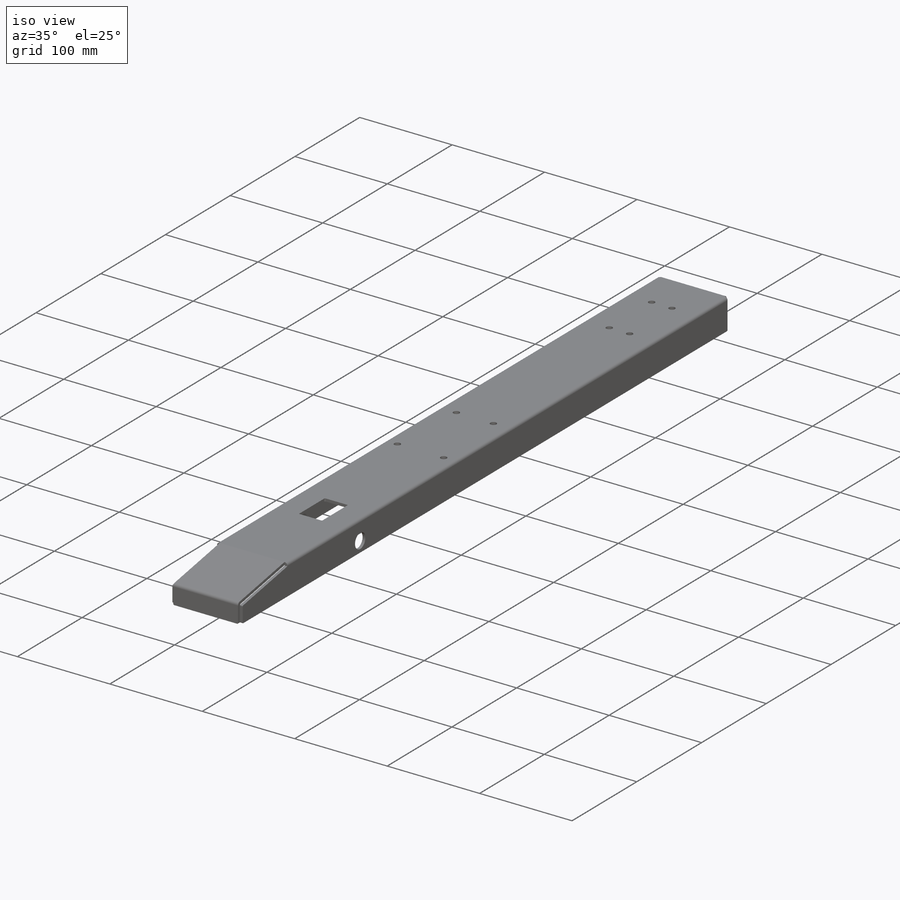
[diagram: iso view]
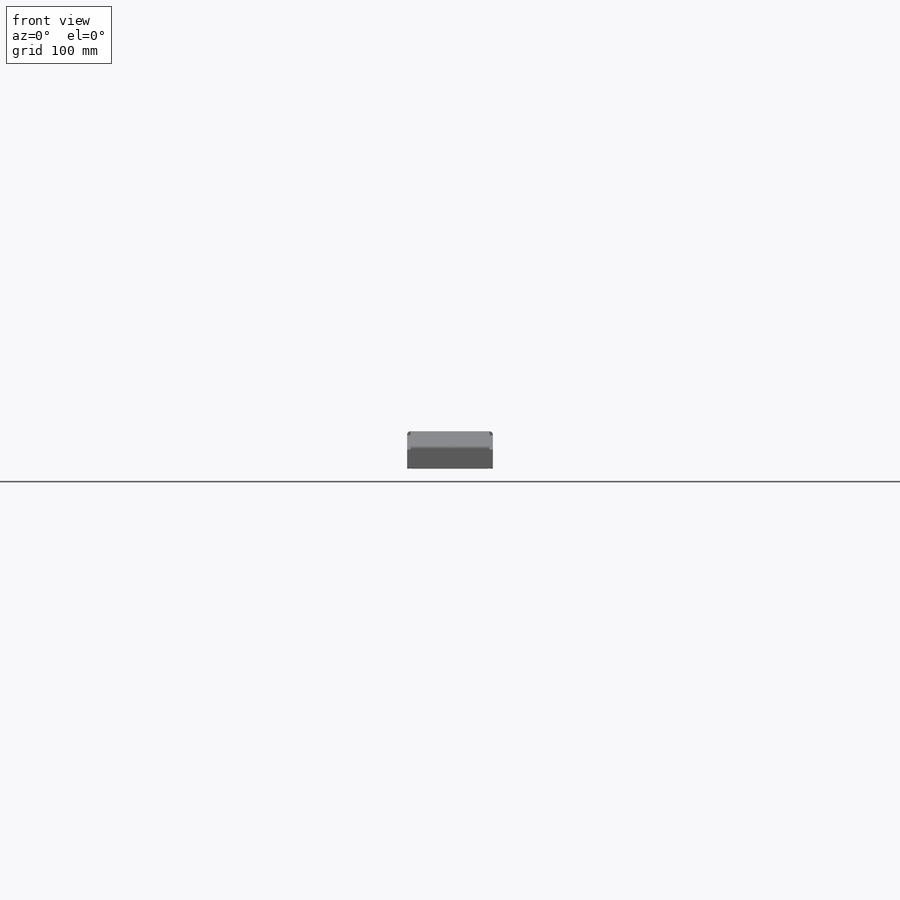
[diagram: front view]
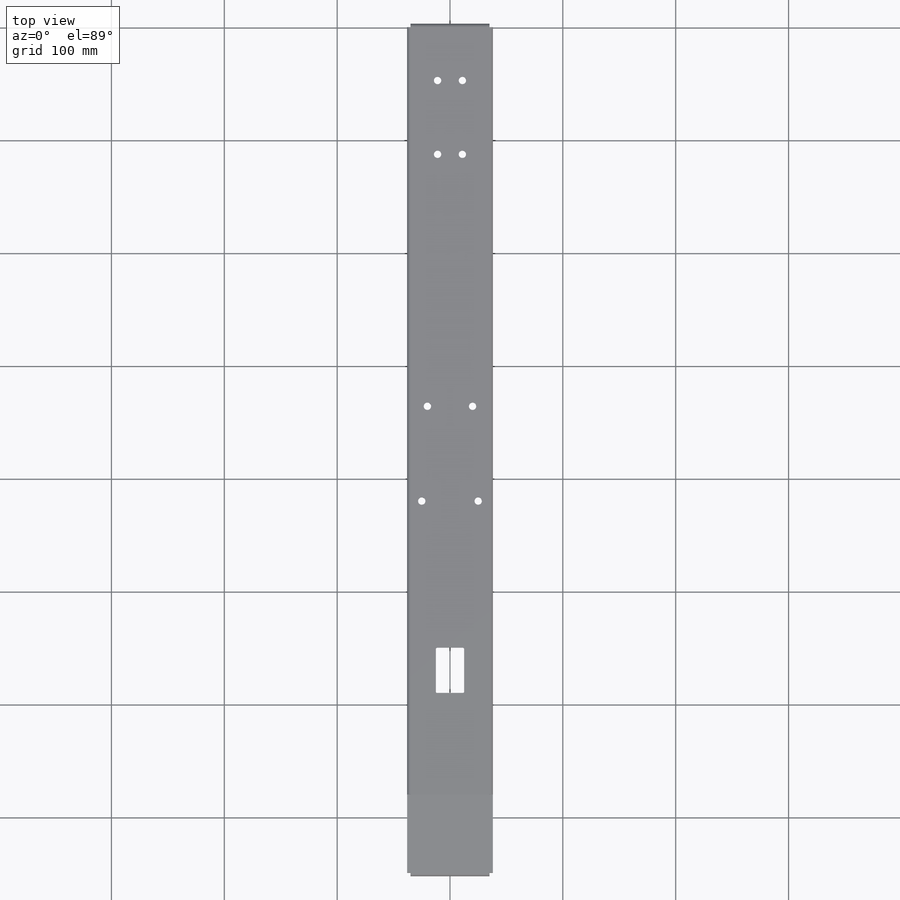
[diagram: top view]
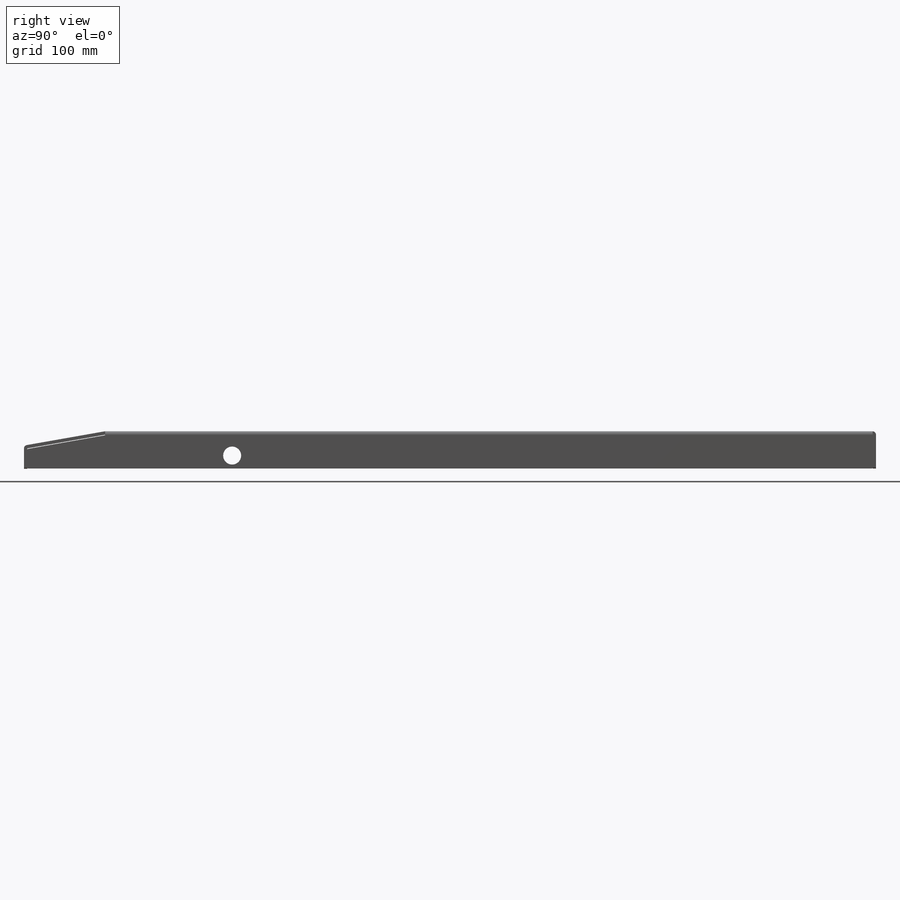
[diagram: right view]
SOLIDWORKS PART (.sldprt)
format: sldprt  version: not decoded by parser v0  size: 932,352 bytes
history: native  units: mm
features: sketch x46, sheet_metal_op x18, hole x4, extrude x2, fillet x2, material x1, plane x1, cut_extrude x1 + 44 further entries (+13 scaffold rows collapsed; 14 parser-record rows omitted)
feature tree (146):
  scaffold x13  (default folders/planes/origin — collapsed)
  material  "St37/42"
  plane  "Ebene vorne"
  parser-record x14  (decoder bookkeeping rows leaked as tree rows — omitted from the tree; the rows remain in map.json)
  "yAchse"
  "zAchse"
  sketch  "Skizze1"  dims[c1.D1=70.0mm c1.D2=70.0mm c1.D3=680.0mm c2.D1=0.01mm c2.D2=0.001 c2.D3=0.01mm c2.D6=500.0mm]
  sheet_metal_op  "Basis-Blech1"
  sketch  "Skizze8"  dims[c1.D1=30.0mm c2.D1=0.01mm c2.D4=90.0deg c2.D5=1.0 c2.D8=1.5mm c2.D9=1.5mm c3.D1=0.01mm c3.D2=500.0mm c3.D3=0.0mm c3.D6=10.0mm c3.D7=33.0mm c3.Kante-Lasche2=0.0]
  sketch  "Skizze11"  dims[D1=30.0mm]
  sheet_metal_op  "Kantenbiegung2"  Kante-Lasche3=0
  sketch  "Skizze16"  dims[c1.D1=70.0mm c1.D2=~69.982446mm c2.D2=0.0deg]
  sheet_metal_op  "Kantenbiegung3"
  sketch  "Ski_breakout_Zugstange"  dims[c1.D1=~74.024014mm c1.D2=~41.366361mm c2.D1=570.0mm c2.D2=25.0mm c2.D3=40.0mm]
  cut_extrude  "breakout_Zugstange"  [1 undecoded]
  sketch  "Ski_Zunge_li"  dims[c1.D1=~68.953391mm c2.D1=10.0deg c2.D2=29.5mm c2.D3=69.0mm]
  extrude  "Zunge_li"  [1 undecoded]
  sketch  "Ski_Zunge_re"  dims[D1=0.0mm]
  extrude  "Zunge_re"  Depth=0 Kante-Lasche4=0
  sketch  "Skizze28"  dims[D1=18.0mm]
  sheet_metal_op  "Kantenbiegung4"
  hole  "Ø6.5 (6.5) Durchmesser Bohrung1"  Diameter=6.5mm Depth=33.15683mm
  sketch  "Skizze30"  dims[c1.D1=~60.781011mm c1.D2=~19.70916mm c2.D1=22.0mm c2.D2=65.4mm c2.D3=80.0mm]
  sketch  "Skizze29"  dims[hole-wizard template sketch: 59 standard entries collapsed; hole parameters kept: c18.Bohrerdurchmesser=6.5mm c18.Bohrungstiefe=~33.15683mm]
  hole  "Ø16.0 (16) Durchmesser Bohrung1"  Diameter=16mm Depth=76.02mm
  sketch  "Skizze32"  dims[D1=567.5mm D2=21.5mm]
  sketch  "Skizze31"  dims[hole-wizard template sketch: 59 standard entries collapsed; hole parameters kept: c18.Bohrerdurchmesser=16.0mm c18.Bohrungstiefe=76.02mm c18.Kante-Lasche5=0.0]
  sketch  "Skizze36"  dims[D1=30.0mm]
  sheet_metal_op  "Kantenbiegung5"
  hole  "Ø6.5 (6.5) Durchmesser Bohrung2"  Diameter=6.5mm Depth=33.15683mm
  sketch  "Skizze38"  dims[D1=336.0mm D2=40.0mm]
  sketch  "Skizze37"  dims[hole-wizard template sketch: 59 standard entries collapsed; hole parameters kept: c18.Bohrerdurchmesser=6.5mm c18.Bohrungstiefe=~33.15683mm]
  hole  "Ø6.5 (6.5) Durchmesser Bohrung3"  Diameter=6.5mm Depth=33.15683mm
  sketch  "Skizze40"  dims[D1=50.0mm D2=420.0mm]
  sketch  "Skizze39"  dims[hole-wizard template sketch: 59 standard entries collapsed; hole parameters kept: c18.Bohrerdurchmesser=6.5mm c18.Bohrungstiefe=~33.15683mm]
  fillet  "Verrundung1"  Radius=1mm
  sketch  "Biegung-Linien1"
  sketch  "Rahmen1"
  fillet  "Verrundung2"  Radius=0.2mm
  sketch  "Skizze41"  dims[D1=~798.010734mm D2=130.0mm]
  sheet_metal_op  "Blech1"
  "Abwicklung1"
  sketch  "Biegung-Linien2"
  sketch  "Rahmen2"
  sheet_metal_op  "Blech2"
  sketch  "Biegung-Linien2"
  sketch  "Rahmen2"
  sheet_metal_op  "Blech3"
  sketch  "Biegung-Linien2"
  sketch  "Rahmen2"
  "Abwickeln-<Kantenbiegung1>1"
  "Abwickeln-<Kantenbiegung2>1"
  sheet_metal_op  "Blech6"
  sketch  "Biegung-Linien2"
  sketch  "Rahmen2"
  "Abwickeln-<Kantenbiegung3>1"
  "Abwickeln-<Kantenbiegung2>1"
  "Abwickeln-<Kantenbiegung1>1"
  sheet_metal_op  "Blech10"
  sketch  "Biegung-Linien2"
  sketch  "Rahmen2"
  "Abwickeln-<Kantenbiegung3>1"
  "Abwickeln-<Kantenbiegung2>1"
  "Abwickeln-<Kantenbiegung1>1"
  sheet_metal_op  "Blech11"
  sketch  "Biegung-Linien2"
  sketch  "Rahmen2"
  "Abwickeln-<Kantenbiegung3>1"
  "Abwickeln-<Kantenbiegung2>1"
  "Abwickeln-<Kantenbiegung1>1"
  sheet_metal_op  "Blech13"
  sketch  "Biegung-Linien2"
  sketch  "Rahmen2"
  "Abwickeln-<Kantenbiegung3>1"
  "Abwickeln-<Kantenbiegung2>1"
  "Abwickeln-<Kantenbiegung1>1"
  "Abwickeln-<Kantenbiegung4>1"
  sheet_metal_op  "Blech14"
  sketch  "Biegung-Linien2"
  sketch  "Rahmen2"
  "Abwickeln-<Kantenbiegung3>1"
  "Abwickeln-<Kantenbiegung2>1"
  "Abwickeln-<Kantenbiegung1>1"
  "Abwickeln-<Kantenbiegung4>1"
  sheet_metal_op  "Blech15"
  sketch  "Biegung-Linien2"
  sketch  "Rahmen2"
  "Abwickeln-<Kantenbiegung3>1"
  "Abwickeln-<Kantenbiegung2>1"
  "Abwickeln-<Kantenbiegung1>1"
  "Abwickeln-<Kantenbiegung4>1"
  sheet_metal_op  "Blech16"
  sketch  "Biegung-Linien2"
  sketch  "Rahmen2"
  "Abwickeln-<Kantenbiegung3>1"
  "Abwickeln-<Kantenbiegung2>1"
  "Abwickeln-<Kantenbiegung1>1"
  sheet_metal_op  "Blech17"
  sketch  "Biegung-Linien2"
  sketch  "Rahmen2"
  "Abwickeln-<Kantenbiegung3>1"
  "Abwickeln-<Kantenbiegung2>1"
  "Abwickeln-<Kantenbiegung1>1"
  "Abwickeln-<Kantenbiegung4>1"
  "Abwickeln-<Kantenbiegung5>1"
  sheet_metal_op  "Blech18"
  sketch  "Biegung-Linien2"
  sketch  "Rahmen2"
  "Abwickeln-<Kantenbiegung3>1"
  "Abwickeln-<Kantenbiegung2>1"
  "Abwickeln-<Kantenbiegung1>1"
  "Abwickeln-<Kantenbiegung4>1"
  "Abwickeln-<Kantenbiegung5>1"
  sheet_metal_op  "Blech19"
  sketch  "Biegung-Linien2"
  sketch  "Rahmen2"
  "Abwickeln-<Kantenbiegung3>1"
  "Abwickeln-<Kantenbiegung2>1"
  "Abwickeln-<Kantenbiegung1>1"
  "Abwickeln-<Kantenbiegung4>1"
  "Abwickeln-<Kantenbiegung5>1"
decode coverage: 26 of 73 modeling features carry decoded parameters; 44 rows unclassified (native names shown)
note: ~ marks probable driven/reference dimensions
note: 2 parameter values undecoded
summary: Diameter pulled from absorbed wizard sketch
note: suppression state not decoded; provenance and decode notes live in map.json
